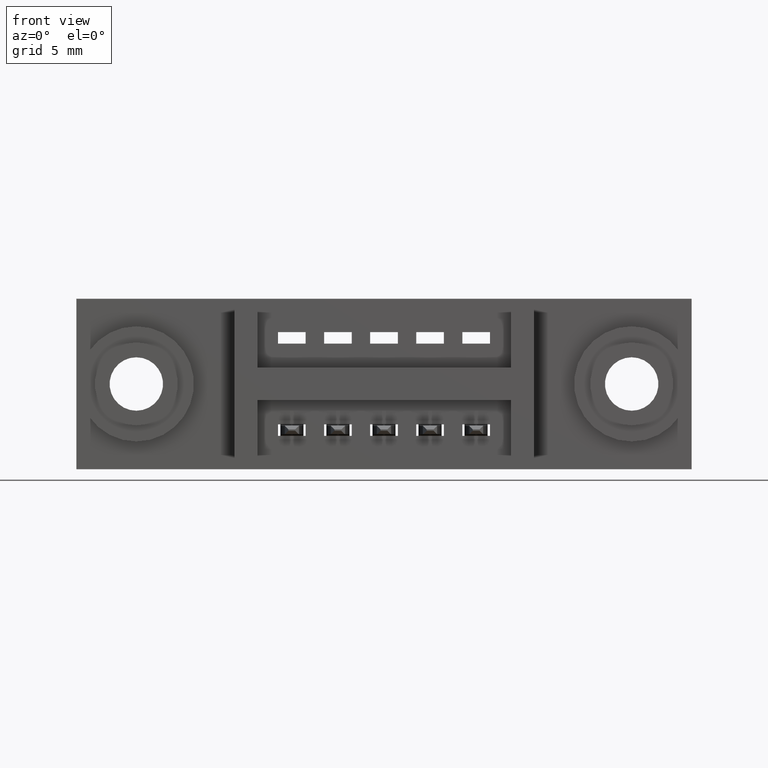
[diagram: clean part render]
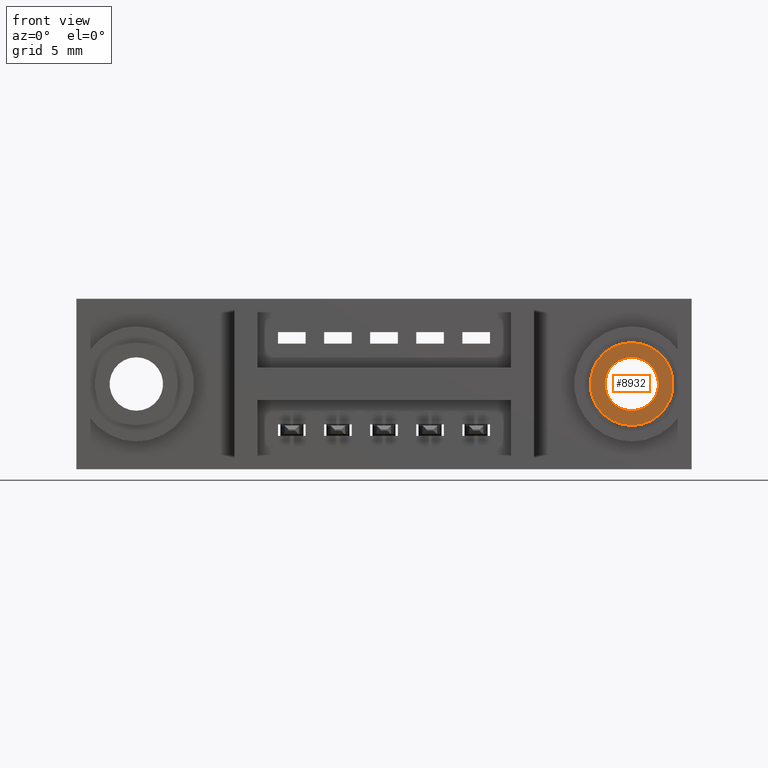
[diagram: same view with one face highlighted and labeled with its STEP entity id]
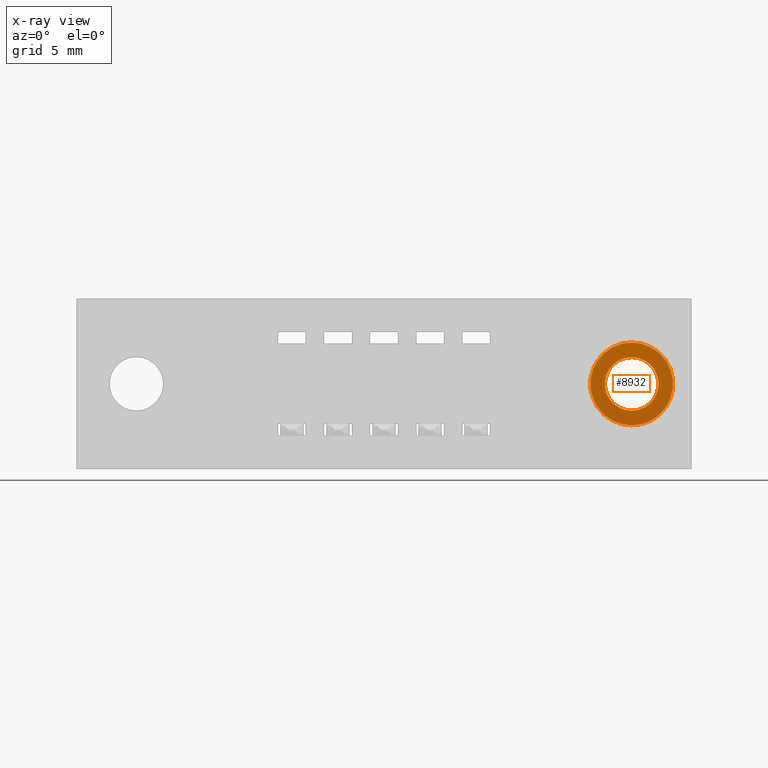
[diagram: x-ray of the same camera — body ghosted, the highlighted face saturated]
A machine part, front view. The second image highlights one B-rep face of the part: STEP entity #8932.
The next image is the same camera in x-ray: the body ghosted, the highlighted face saturated — about 0% of this face is hidden behind the body in this view.
In plain terms, the highlighted planar face has unit normal (0, -1, 0).
Its self-contained STEP definition (entity closure, byte-faithful):
#30 = CARTESIAN_POINT ( 'NONE',  ( 0.0000000000000000000, 0.3279999999999999000, 0.0000000000000000000 ) ) ;
#106 = FACE_BOUND ( 'NONE', #310, .T. ) ;
#310 = EDGE_LOOP ( 'NONE', ( #3479, #2020 ) ) ;
#318 = CARTESIAN_POINT ( 'NONE',  ( -3.067874872647754800E-035, 0.3279999999999999000, 0.08999999999999999700 ) ) ;
#472 = CARTESIAN_POINT ( 'NONE',  ( 0.0000000000000000000, 0.3279999999999999000, 0.0000000000000000000 ) ) ;
#928 = CIRCLE ( 'NONE', #2350, 0.05800000000000000300 ) ;
#1617 = CARTESIAN_POINT ( 'NONE',  ( 7.102951435054640600E-018, 0.3279999999999999000, -0.05800000000000000300 ) ) ;
#1686 = CARTESIAN_POINT ( 'NONE',  ( 1.102182119232617900E-017, 0.3279999999999999000, -0.08999999999999999700 ) ) ;
#2020 = ORIENTED_EDGE ( 'NONE', *, *, #3756, .F. ) ;
#2144 = DIRECTION ( 'NONE',  ( -2.465190328815661900E-032, 1.000000000000000000, 0.0000000000000000000 ) ) ;
#2282 = EDGE_CURVE ( 'NONE', #8680, #8826, #2534, .T. ) ;
#2350 = AXIS2_PLACEMENT_3D ( 'NONE', #5073, #2144, #6493 ) ;
#2504 = VERTEX_POINT ( 'NONE', #3493 ) ;
#2534 = CIRCLE ( 'NONE', #3530, 0.08999999999999999700 ) ;
#3179 = FACE_OUTER_BOUND ( 'NONE', #6365, .T. ) ;
#3271 = CIRCLE ( 'NONE', #5567, 0.08999999999999999700 ) ;
#3479 = ORIENTED_EDGE ( 'NONE', *, *, #5570, .F. ) ;
#3493 = CARTESIAN_POINT ( 'NONE',  ( -1.977074917928553200E-035, 0.3279999999999999000, 0.05800000000000000300 ) ) ;
#3506 = DIRECTION ( 'NONE',  ( -2.465190328815661900E-032, 1.000000000000000000, -7.095886083921900600E-051 ) ) ;
#3530 = AXIS2_PLACEMENT_3D ( 'NONE', #7570, #7600, #6729 ) ;
#3739 = DIRECTION ( 'NONE',  ( -2.465190328815661900E-032, 1.000000000000000000, 0.0000000000000000000 ) ) ;
#3756 = EDGE_CURVE ( 'NONE', #9357, #2504, #7842, .T. ) ;
#4017 = ORIENTED_EDGE ( 'NONE', *, *, #2282, .T. ) ;
#4244 = DIRECTION ( 'NONE',  ( -3.408749858497505200E-034, 7.095886083921892200E-051, 1.000000000000000000 ) ) ;
#4687 = DIRECTION ( 'NONE',  ( -3.408749858497505600E-034, 0.0000000000000000000, 1.000000000000000000 ) ) ;
#4715 = CARTESIAN_POINT ( 'NONE',  ( 0.0000000000000000000, 0.3279999999999999000, 0.0000000000000000000 ) ) ;
#4963 = PLANE ( 'NONE',  #7709 ) ;
#5073 = CARTESIAN_POINT ( 'NONE',  ( 0.0000000000000000000, 0.3279999999999999000, 0.0000000000000000000 ) ) ;
#5567 = AXIS2_PLACEMENT_3D ( 'NONE', #4715, #7562, #4687 ) ;
#5570 = EDGE_CURVE ( 'NONE', #2504, #9357, #928, .T. ) ;
#5883 = AXIS2_PLACEMENT_3D ( 'NONE', #30, #3739, #5985 ) ;
#5985 = DIRECTION ( 'NONE',  ( -3.408749858497505200E-034, 0.0000000000000000000, 1.000000000000000000 ) ) ;
#6296 = EDGE_CURVE ( 'NONE', #8826, #8680, #3271, .T. ) ;
#6365 = EDGE_LOOP ( 'NONE', ( #9269, #4017 ) ) ;
#6493 = DIRECTION ( 'NONE',  ( -3.408749858497505200E-034, 0.0000000000000000000, 1.000000000000000000 ) ) ;
#6729 = DIRECTION ( 'NONE',  ( -3.408749858497505600E-034, 0.0000000000000000000, 1.000000000000000000 ) ) ;
#7562 = DIRECTION ( 'NONE',  ( -2.465190328815661900E-032, 1.000000000000000000, 0.0000000000000000000 ) ) ;
#7570 = CARTESIAN_POINT ( 'NONE',  ( 0.0000000000000000000, 0.3279999999999999000, 0.0000000000000000000 ) ) ;
#7600 = DIRECTION ( 'NONE',  ( -2.465190328815661900E-032, 1.000000000000000000, 0.0000000000000000000 ) ) ;
#7709 = AXIS2_PLACEMENT_3D ( 'NONE', #472, #3506, #4244 ) ;
#7842 = CIRCLE ( 'NONE', #5883, 0.05800000000000000300 ) ;
#8680 = VERTEX_POINT ( 'NONE', #1686 ) ;
#8826 = VERTEX_POINT ( 'NONE', #318 ) ;
#8932 = ADVANCED_FACE ( 'NONE', ( #106, #3179 ), #4963, .T. ) ;
#9269 = ORIENTED_EDGE ( 'NONE', *, *, #6296, .T. ) ;
#9357 = VERTEX_POINT ( 'NONE', #1617 ) ;